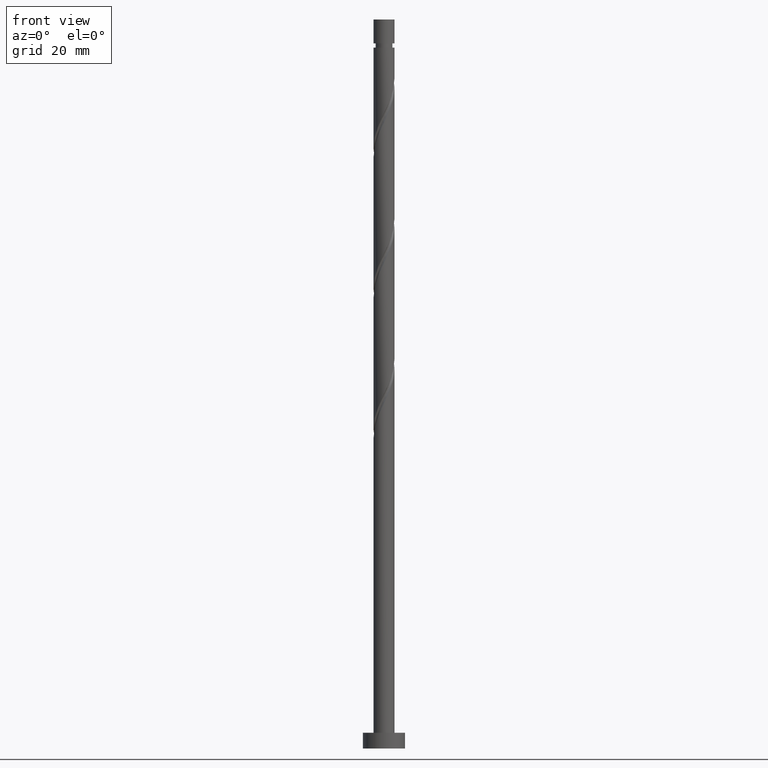
[diagram: clean part render]
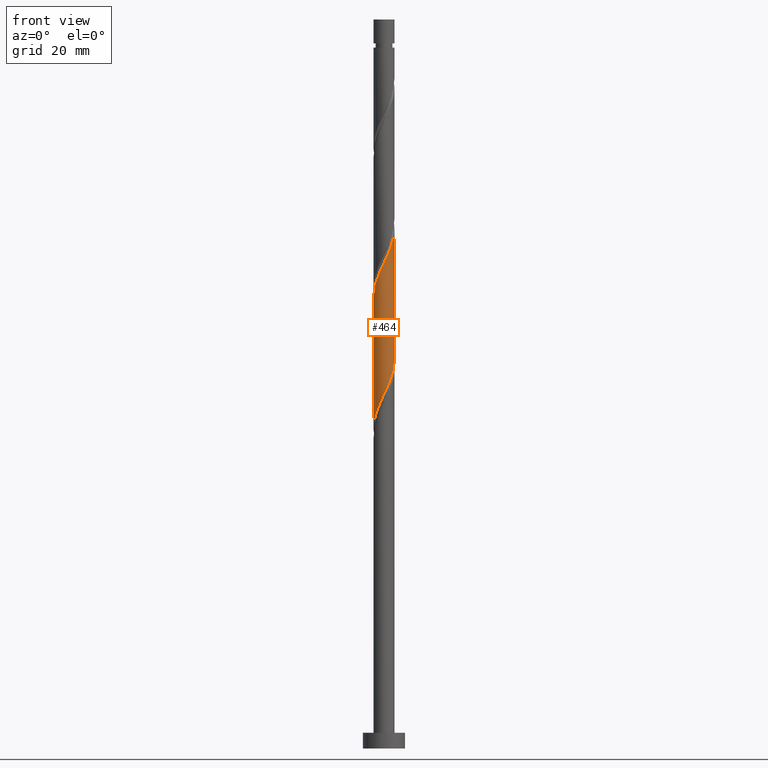
[diagram: same view with one face highlighted and labeled with its STEP entity id]
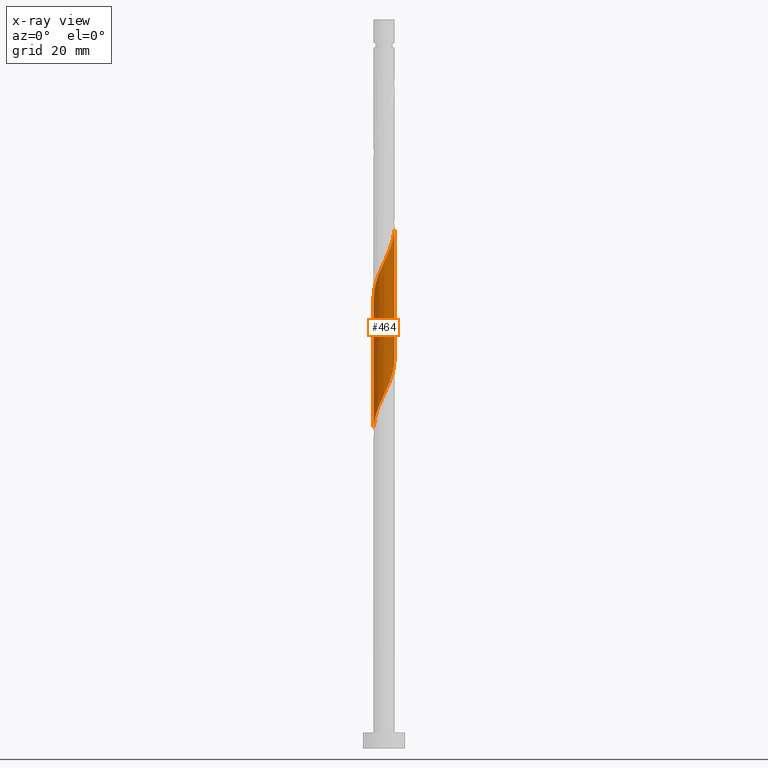
[diagram: x-ray of the same camera — body ghosted, the highlighted face saturated]
A machine part, front view. The second image highlights one B-rep face of the part: STEP entity #464.
The next image is the same camera in x-ray: the body ghosted, the highlighted face saturated — about 0% of this face is hidden behind the body in this view.
In plain terms, the highlighted cylindrical surface (edge-blend (fillet) strip) has radius 2 mm, axis along (-0, -0, -1).
Its self-contained STEP definition (entity closure, byte-faithful):
#35 = CARTESIAN_POINT ( 'NONE',  ( -0.9928482695149695170, -1.759812803970229877, 90.08333925185866065 ) ) ;
#45 = CARTESIAN_POINT ( 'NONE',  ( -1.220637884402356432, -1.584311571365225602, 89.47727864579805157 ) ) ;
#64 = CARTESIAN_POINT ( 'NONE',  ( 1.188337955536409085, -1.634179211325361258, 94.93182410034349061 ) ) ;
#87 = CARTESIAN_POINT ( 'NONE',  ( 1.980155124014550738, -0.4020876473299552223, 73.11364228216169181 ) ) ;
#106 = CARTESIAN_POINT ( 'NONE',  ( -0.1161895186125007778, -2.017223038501448240, 67.05303622155562948 ) ) ;
#115 = VERTEX_POINT ( 'NONE', #301 ) ;
#140 = LINE ( 'NONE', #768, #972 ) ;
#142 = CARTESIAN_POINT ( 'NONE',  ( 2.000000000000000000, 2.449293598294706414E-16, 138.4499999999999886 ) ) ;
#149 = CYLINDRICAL_SURFACE ( 'NONE', #1429, 2.000000000000000000 ) ;
#177 = CARTESIAN_POINT ( 'NONE',  ( -0.1703224295138033029, -1.992734370156876489, 91.90152107004045945 ) ) ;
#208 = CARTESIAN_POINT ( 'NONE',  ( -2.000000000000003109, -9.647149353755143079E-16, 85.59752113619411773 ) ) ;
#238 = CARTESIAN_POINT ( 'NONE',  ( 0.7248413235775366115, -1.864029252891264754, 68.87121803973742828 ) ) ;
#240 = CARTESIAN_POINT ( 'NONE',  ( -1.883409435608319304, -0.6728810428757545647, 87.05303622155560106 ) ) ;
#246 = VERTEX_POINT ( 'NONE', #1659 ) ;
#250 = DIRECTION ( 'NONE',  ( -0.000000000000000000, -0.000000000000000000, -1.000000000000000000 ) ) ;
#278 = VERTEX_POINT ( 'NONE', #1631 ) ;
#301 = CARTESIAN_POINT ( 'NONE',  ( -2.000000000000000444, -4.038341589944041928E-15, 60.62976342812925878 ) ) ;
#338 = CARTESIAN_POINT ( 'NONE',  ( 0.1703224295138022759, -1.992734370156874713, 67.65909682761623856 ) ) ;
#362 = CARTESIAN_POINT ( 'NONE',  ( 1.448427499289742348, -1.408810338760219771, 70.68939985791924130 ) ) ;
#388 = DIRECTION ( 'NONE',  ( -0.000000000000000000, -0.000000000000000000, -1.000000000000000000 ) ) ;
#405 = LINE ( 'NONE', #142, #1288 ) ;
#432 = CARTESIAN_POINT ( 'NONE',  ( 1.741900447066339952, -0.9827425057002958653, 96.75000591852530363 ) ) ;
#437 = CARTESIAN_POINT ( 'NONE',  ( -1.617545623245914665, -1.176242388590887700, 88.26515743367680500 ) ) ;
#464 = ADVANCED_FACE ( 'NONE', ( #1292 ), #149, .T. ) ;
#473 = CARTESIAN_POINT ( 'NONE',  ( 0.9928482695149669635, -1.759812803970227879, 69.47727864579803736 ) ) ;
#483 = ORIENTED_EDGE ( 'NONE', *, *, #764, .F. ) ;
#486 = CARTESIAN_POINT ( 'NONE',  ( -1.980155124014554291, -0.4020876473299551113, 86.44697561549502041 ) ) ;
#505 = CARTESIAN_POINT ( 'NONE',  ( -1.948211798543800555, -0.4521844623765079452, 61.59849076701016912 ) ) ;
#562 = CARTESIAN_POINT ( 'NONE',  ( 0.3979949748426480083, -1.960000000000003073, 93.11364228216160654 ) ) ;
#564 = CARTESIAN_POINT ( 'NONE',  ( -1.786663747202085206, -0.9436744384215547399, 87.65909682761622435 ) ) ;
#568 = CARTESIAN_POINT ( 'NONE',  ( 1.883197487972274597, -0.7322950311120155487, 97.35606652458591270 ) ) ;
#572 = CARTESIAN_POINT ( 'NONE',  ( 0.9340691933046018081, -1.768478086411958028, 94.32576349428286733 ) ) ;
#604 = CARTESIAN_POINT ( 'NONE',  ( 0.4568343776401062040, -1.968245701812301407, 68.26515743367683342 ) ) ;
#614 = CARTESIAN_POINT ( 'NONE',  ( 2.000000000000000000, -1.974300332861531101E-15, 73.96309676146259449 ) ) ;
#654 = VERTEX_POINT ( 'NONE', #950 ) ;
#694 = CARTESIAN_POINT ( 'NONE',  ( 0.1161895186125000562, -2.017223038501451349, 92.50758167610109695 ) ) ;
#743 = CARTESIAN_POINT ( 'NONE',  ( -2.000000000000000444, -4.038341589944041928E-15, 60.62976342812925878 ) ) ;
#764 = EDGE_CURVE ( 'NONE', #246, #115, #1025, .T. ) ;
#768 = CARTESIAN_POINT ( 'NONE',  ( -2.000000000000000000, 0.000000000000000000, 138.4499999999999886 ) ) ;
#797 = EDGE_LOOP ( 'NONE', ( #1527, #1089, #1289, #483 ) ) ;
#854 = CARTESIAN_POINT ( 'NONE',  ( 1.883409435608316862, -0.6728810428757546758, 72.50758167610106852 ) ) ;
#884 = EDGE_CURVE ( 'NONE', #654, #115, #140, .T. ) ;
#904 =( BOUNDED_CURVE ( )  B_SPLINE_CURVE ( 2, ( #208, #1369, #1379, #486, #240, #564, #437, #948, #45, #35, #1460, #1213, #177, #694, #562, #1579, #572, #64, #1062, #1588, #432, #568, #1082, #1595, #957 ),
 .UNSPECIFIED., .F., .T. ) 
 B_SPLINE_CURVE_WITH_KNOTS ( ( 3, 2, 2, 2, 2, 2, 2, 2, 2, 2, 2, 2, 3 ),
 ( 0.3045252162417513286, 0.3068181818181817677, 0.3181818181818182323, 0.3295454545454545858, 0.3409090909090909394, 0.3522727272727272929, 0.3636363636363636465, 0.3750000000000000000, 0.3863636363636363535, 0.3977272727272727071, 0.4090909090909090606, 0.4204545454545454142, 0.4295252162417514952 ),
 .UNSPECIFIED. ) 
 CURVE ( )  GEOMETRIC_REPRESENTATION_ITEM ( )  RATIONAL_B_SPLINE_CURVE ( ( 0.9061101570135646766, 0.9072237824201467848, 0.9090909090909243817, 0.8998376744372265090, 0.9090909090909243817, 0.8998376744372265090, 0.9090909090909243817, 0.8998376744372265090, 0.9090909090909243817, 0.8998376744372265090, 0.9090909090909243817, 0.8998376744372265090, 0.9090909090909243817, 0.8998376744372265090, 0.9090909090909243817, 0.8998376744372265090, 0.9090909090909243817, 0.8998376744372265090, 0.9090909090909243817, 0.8998376744372265090, 0.9090909090909243817, 0.8998376744372265090, 0.9090909090909243817, 0.9017048011080037728, 0.9061101570135647876 ) ) 
 REPRESENTATION_ITEM ( '' )  );
#914 = DIRECTION ( 'NONE',  ( -0.000000000000000000, -0.000000000000000000, -1.000000000000000000 ) ) ;
#948 = CARTESIAN_POINT ( 'NONE',  ( -1.448427499289744569, -1.408810338760221326, 88.87121803973745671 ) ) ;
#950 = CARTESIAN_POINT ( 'NONE',  ( -2.000000000000003109, -9.647149353755143079E-16, 85.59752113619411773 ) ) ;
#957 = CARTESIAN_POINT ( 'NONE',  ( 2.000000000000003109, 8.899308318580325832E-16, 98.93085446952747475 ) ) ;
#972 = VECTOR ( 'NONE', #914, 1000.000000000000000 ) ;
#986 = CARTESIAN_POINT ( 'NONE',  ( -1.188337955536407309, -1.634179211325359038, 64.62879379731320739 ) ) ;
#1000 = CARTESIAN_POINT ( 'NONE',  ( -0.9340691933046014750, -1.768478086411955585, 65.23485440337383068 ) ) ;
#1008 = CARTESIAN_POINT ( 'NONE',  ( 1.999999999999999556, -0.05755105304764046581, 73.84099875674438351 ) ) ;
#1023 = CARTESIAN_POINT ( 'NONE',  ( 0.000000000000000000, 0.000000000000000000, 138.4499999999999886 ) ) ;
#1025 =( BOUNDED_CURVE ( )  B_SPLINE_CURVE ( 2, ( #614, #1008, #1377, #87, #854, #1273, #1254, #362, #1633, #473, #238, #604, #338, #106, #1651, #1118, #1000, #986, #1367, #1644, #1528, #1514, #505, #1500, #743 ),
 .UNSPECIFIED., .F., .T. ) 
 B_SPLINE_CURVE_WITH_KNOTS ( ( 3, 2, 2, 2, 2, 2, 2, 2, 2, 2, 2, 2, 3 ),
 ( 0.8045252162417511066, 0.8068181818181817677, 0.8181818181818182323, 0.8295454545454545858, 0.8409090909090909394, 0.8522727272727272929, 0.8636363636363636465, 0.8750000000000000000, 0.8863636363636363535, 0.8977272727272727071, 0.9090909090909090606, 0.9204545454545454142, 0.9295252162417512176 ),
 .UNSPECIFIED. ) 
 CURVE ( )  GEOMETRIC_REPRESENTATION_ITEM ( )  RATIONAL_B_SPLINE_CURVE ( ( 0.9061101570135583483, 0.9072237824201404566, 0.9090909090909180534, 0.8998376744372204028, 0.9090909090909180534, 0.8998376744372204028, 0.9090909090909180534, 0.8998376744372204028, 0.9090909090909180534, 0.8998376744372204028, 0.9090909090909180534, 0.8998376744372204028, 0.9090909090909180534, 0.8998376744372204028, 0.9090909090909180534, 0.8998376744372204028, 0.9090909090909180534, 0.8998376744372204028, 0.9090909090909180534, 0.8998376744372204028, 0.9090909090909180534, 0.8998376744372204028, 0.9090909090909180534, 0.9017048011079978886, 0.9061101570135583483 ) ) 
 REPRESENTATION_ITEM ( '' )  );
#1062 = CARTESIAN_POINT ( 'NONE',  ( 1.394470680848407529, -1.433684595806968387, 95.53788470640409969 ) ) ;
#1082 = CARTESIAN_POINT ( 'NONE',  ( 1.948211798543802775, -0.4521844623765088889, 97.96212713064649336 ) ) ;
#1089 = ORIENTED_EDGE ( 'NONE', *, *, #1636, .F. ) ;
#1118 = CARTESIAN_POINT ( 'NONE',  ( -0.6798004310727957522, -1.902776961498551689, 65.84091500943439712 ) ) ;
#1213 = CARTESIAN_POINT ( 'NONE',  ( -0.4568343776401067591, -1.968245701812304516, 91.29546046397989301 ) ) ;
#1254 = CARTESIAN_POINT ( 'NONE',  ( 1.617545623245912667, -1.176242388590886589, 71.29546046397987880 ) ) ;
#1273 = CARTESIAN_POINT ( 'NONE',  ( 1.786663747202082320, -0.9436744384215535186, 71.90152107004045945 ) ) ;
#1274 = EDGE_CURVE ( 'NONE', #278, #246, #405, .T. ) ;
#1288 = VECTOR ( 'NONE', #250, 1000.000000000000000 ) ;
#1289 = ORIENTED_EDGE ( 'NONE', *, *, #884, .T. ) ;
#1292 = FACE_OUTER_BOUND ( 'NONE', #797, .T. ) ;
#1367 = CARTESIAN_POINT ( 'NONE',  ( -1.394470680848406197, -1.433684595806965723, 64.02273319125259832 ) ) ;
#1369 = CARTESIAN_POINT ( 'NONE',  ( -2.000000000000003553, -0.05755105304764517038, 85.71961914091234291 ) ) ;
#1377 = CARTESIAN_POINT ( 'NONE',  ( 1.996690616564939402, -0.1150068768444770795, 73.71970288822230088 ) ) ;
#1379 = CARTESIAN_POINT ( 'NONE',  ( -1.996690616564942955, -0.1150068768444763440, 85.84091500943438291 ) ) ;
#1405 = DIRECTION ( 'NONE',  ( -1.000000000000000000, 0.000000000000000000, 0.000000000000000000 ) ) ;
#1429 = AXIS2_PLACEMENT_3D ( 'NONE', #1023, #388, #1405 ) ;
#1460 = CARTESIAN_POINT ( 'NONE',  ( -0.7248413235775382768, -1.864029252891266086, 90.68939985791924130 ) ) ;
#1500 = CARTESIAN_POINT ( 'NONE',  ( -1.999999999999999556, -0.2290578547702478707, 61.11572338110055114 ) ) ;
#1514 = CARTESIAN_POINT ( 'NONE',  ( -1.883197487972271711, -0.7322950311120145495, 62.20455137307076399 ) ) ;
#1527 = ORIENTED_EDGE ( 'NONE', *, *, #1274, .F. ) ;
#1528 = CARTESIAN_POINT ( 'NONE',  ( -1.741900447066338398, -0.9827425057002938669, 62.81061197913138727 ) ) ;
#1579 = CARTESIAN_POINT ( 'NONE',  ( 0.6798004310727959743, -1.902776961498555020, 93.71970288822228667 ) ) ;
#1588 = CARTESIAN_POINT ( 'NONE',  ( 1.600603406160406861, -1.233189980288575516, 96.14394531246469455 ) ) ;
#1595 = CARTESIAN_POINT ( 'NONE',  ( 2.000000000000003997, -0.2290578547702415979, 98.44489451655616108 ) ) ;
#1631 = CARTESIAN_POINT ( 'NONE',  ( 2.000000000000003109, 8.899308318580325832E-16, 98.93085446952747475 ) ) ;
#1633 = CARTESIAN_POINT ( 'NONE',  ( 1.220637884402354656, -1.584311571365223825, 70.08333925185866065 ) ) ;
#1636 = EDGE_CURVE ( 'NONE', #654, #278, #904, .T. ) ;
#1644 = CARTESIAN_POINT ( 'NONE',  ( -1.600603406160404640, -1.233189980288572851, 63.41667258519198214 ) ) ;
#1651 = CARTESIAN_POINT ( 'NONE',  ( -0.3979949748426482303, -1.959999999999999964, 66.44697561549503462 ) ) ;
#1659 = CARTESIAN_POINT ( 'NONE',  ( 2.000000000000000000, -1.974300332861531101E-15, 73.96309676146259449 ) ) ;